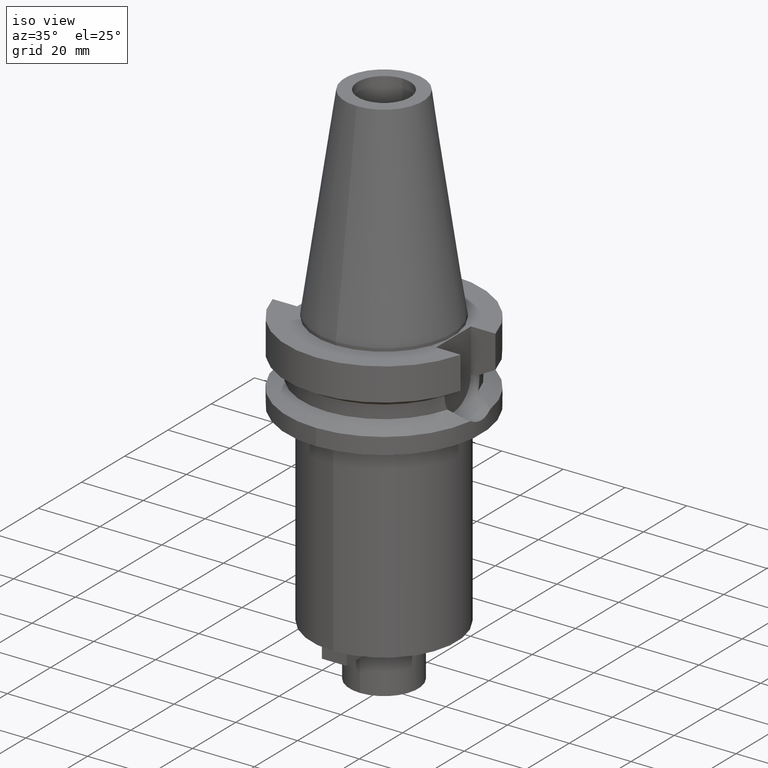
[diagram: clean part render]
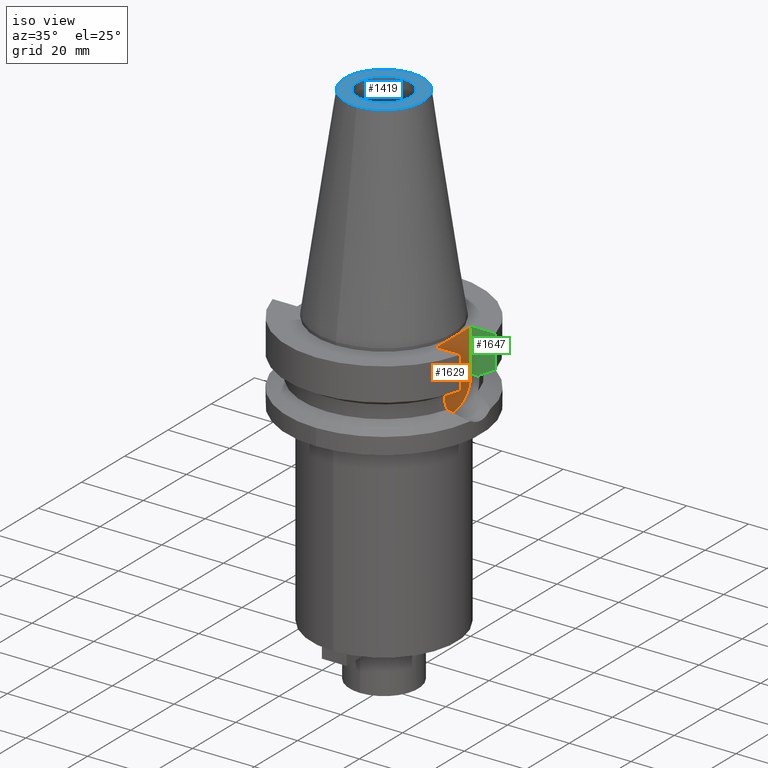
[diagram: same view with three faces highlighted in distinct colors, each labeled with its STEP entity id]
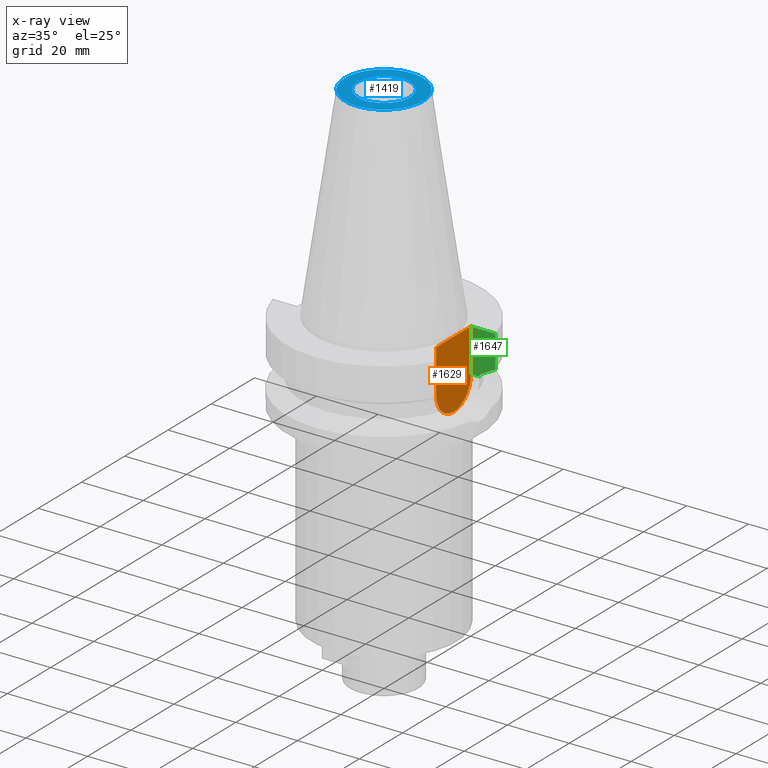
[diagram: x-ray of the same camera — body ghosted, the three highlighted faces saturated]
A machine part, iso view with three faces highlighted in distinct colors.
The next image is the same camera in x-ray (body ghosted, the three faces saturated) — at least one of them is partly hidden behind the body in this view.
Their STEP definitions:

[orange] entity #1629 — the highlighted planar face has unit normal (1, 0, 0).
#124=DIRECTION('',(0.E0,-1.E0,0.E0));
#125=VECTOR('',#124,1.61E1);
#126=CARTESIAN_POINT('',(2.25E1,8.05E0,-1.E0));
#127=LINE('',#126,#125);
#307=DIRECTION('',(0.E0,0.E0,-1.E0));
#308=VECTOR('',#307,1.395E1);
#309=CARTESIAN_POINT('',(2.25E1,8.05E0,-1.E0));
#310=LINE('',#309,#308);
#314=CARTESIAN_POINT('',(2.25E1,0.E0,-1.495E1));
#315=DIRECTION('',(-1.E0,0.E0,0.E0));
#316=DIRECTION('',(0.E0,1.E0,0.E0));
#317=AXIS2_PLACEMENT_3D('',#314,#315,#316);
#322=CARTESIAN_POINT('',(2.25E1,0.E0,-1.495E1));
#323=DIRECTION('',(-1.E0,0.E0,0.E0));
#324=DIRECTION('',(0.E0,0.E0,-1.E0));
#325=AXIS2_PLACEMENT_3D('',#322,#323,#324);
#330=DIRECTION('',(0.E0,0.E0,1.E0));
#331=VECTOR('',#330,1.395E1);
#332=CARTESIAN_POINT('',(2.25E1,-8.05E0,-1.495E1));
#333=LINE('',#332,#331);
#1310=CARTESIAN_POINT('',(2.25E1,-8.05E0,-1.495E1));
#1311=VERTEX_POINT('',#1310);
#1312=CARTESIAN_POINT('',(2.25E1,0.E0,-2.3E1));
#1313=VERTEX_POINT('',#1312);
#1314=CARTESIAN_POINT('',(2.25E1,8.05E0,-1.495E1));
#1315=VERTEX_POINT('',#1314);
#1362=CARTESIAN_POINT('',(2.25E1,8.05E0,-1.E0));
#1363=VERTEX_POINT('',#1362);
#1364=CARTESIAN_POINT('',(2.25E1,-8.05E0,-1.E0));
#1365=VERTEX_POINT('',#1364);
#1614=CARTESIAN_POINT('',(2.25E1,0.E0,0.E0));
#1615=DIRECTION('',(1.E0,0.E0,0.E0));
#1616=DIRECTION('',(0.E0,0.E0,-1.E0));
#1617=AXIS2_PLACEMENT_3D('',#1614,#1615,#1616);
#1618=PLANE('',#1617);
#1619=ORIENTED_EDGE('',*,*,#1491,.F.);
#1621=ORIENTED_EDGE('',*,*,#1620,.T.);
#1623=ORIENTED_EDGE('',*,*,#1622,.T.);
#1625=ORIENTED_EDGE('',*,*,#1624,.T.);
#1626=ORIENTED_EDGE('',*,*,#1607,.T.);
#1627=EDGE_LOOP('',(#1619,#1621,#1623,#1625,#1626));
#1628=FACE_OUTER_BOUND('',#1627,.F.);
#318=CIRCLE('',#317,8.05E0);
#326=CIRCLE('',#325,8.05E0);
#1491=EDGE_CURVE('',#1363,#1365,#127,.T.);
#1607=EDGE_CURVE('',#1311,#1365,#333,.T.);
#1620=EDGE_CURVE('',#1363,#1315,#310,.T.);
#1622=EDGE_CURVE('',#1315,#1313,#318,.T.);
#1624=EDGE_CURVE('',#1313,#1311,#326,.T.);
#1629=ADVANCED_FACE('',(#1628),#1618,.T.);

[blue] entity #1419 — the highlighted planar face has unit normal (0, 0, -1).
#17=CARTESIAN_POINT('',(0.E0,1.625106302469E-14,6.54E1));
#18=DIRECTION('',(0.E0,0.E0,-1.E0));
#19=DIRECTION('',(0.E0,-1.E0,0.E0));
#20=AXIS2_PLACEMENT_3D('',#17,#18,#19);
#26=CARTESIAN_POINT('',(0.E0,1.625106302469E-14,6.54E1));
#27=DIRECTION('',(0.E0,0.E0,-1.E0));
#28=DIRECTION('',(0.E0,1.E0,0.E0));
#29=AXIS2_PLACEMENT_3D('',#26,#27,#28);
#34=CARTESIAN_POINT('',(0.E0,2.131130359876E-14,6.54E1));
#35=DIRECTION('',(0.E0,0.E0,1.E0));
#36=DIRECTION('',(0.E0,-1.E0,0.E0));
#37=AXIS2_PLACEMENT_3D('',#34,#35,#36);
#42=CARTESIAN_POINT('',(0.E0,2.131130359876E-14,6.54E1));
#43=DIRECTION('',(0.E0,0.E0,1.E0));
#44=DIRECTION('',(0.E0,1.E0,0.E0));
#45=AXIS2_PLACEMENT_3D('',#42,#43,#44);
#1209=CARTESIAN_POINT('',(0.E0,-1.268766899430E1,6.54E1));
#1210=CARTESIAN_POINT('',(0.E0,1.268766899430E1,6.54E1));
#1211=VERTEX_POINT('',#1209);
#1212=VERTEX_POINT('',#1210);
#1213=CARTESIAN_POINT('',(0.E0,-8.5E0,6.54E1));
#1214=CARTESIAN_POINT('',(0.E0,8.5E0,6.54E1));
#1215=VERTEX_POINT('',#1213);
#1216=VERTEX_POINT('',#1214);
#1402=CARTESIAN_POINT('',(0.E0,2.025565805790E-14,6.54E1));
#1403=DIRECTION('',(0.E0,0.E0,-1.E0));
#1404=DIRECTION('',(0.E0,-1.E0,0.E0));
#1405=AXIS2_PLACEMENT_3D('',#1402,#1403,#1404);
#1406=PLANE('',#1405);
#1408=ORIENTED_EDGE('',*,*,#1407,.T.);
#1410=ORIENTED_EDGE('',*,*,#1409,.T.);
#1411=EDGE_LOOP('',(#1408,#1410));
#1412=FACE_OUTER_BOUND('',#1411,.F.);
#1414=ORIENTED_EDGE('',*,*,#1413,.T.);
#1416=ORIENTED_EDGE('',*,*,#1415,.T.);
#1417=EDGE_LOOP('',(#1414,#1416));
#1418=FACE_BOUND('',#1417,.F.);
#21=CIRCLE('',#20,1.268766899430E1);
#30=CIRCLE('',#29,1.268766899430E1);
#38=CIRCLE('',#37,8.5E0);
#46=CIRCLE('',#45,8.5E0);
#1407=EDGE_CURVE('',#1211,#1212,#21,.T.);
#1409=EDGE_CURVE('',#1212,#1211,#30,.T.);
#1413=EDGE_CURVE('',#1215,#1216,#38,.T.);
#1415=EDGE_CURVE('',#1216,#1215,#46,.T.);
#1419=ADVANCED_FACE('',(#1412,#1418),#1406,.F.);

[green] entity #1647 — the highlighted planar face has unit normal (0, 1, 0).
#307=DIRECTION('',(0.E0,0.E0,-1.E0));
#308=VECTOR('',#307,1.395E1);
#309=CARTESIAN_POINT('',(2.25E1,8.05E0,-1.E0));
#310=LINE('',#309,#308);
#337=DIRECTION('',(1.E0,-3.506251283226E-14,0.E0));
#338=VECTOR('',#337,7.954022722788E0);
#339=CARTESIAN_POINT('',(2.25E1,8.05E0,-1.E0));
#340=LINE('',#339,#338);
#344=CARTESIAN_POINT('',(3.045402291376E1,8.049999277539E0,-1.156551215973E1));
#345=CARTESIAN_POINT('',(2.987645774495E1,8.049999277539E0,-1.188789690896E1));
#346=CARTESIAN_POINT('',(2.872091197121E1,8.049999725861E0,-1.253193846352E1));
#347=CARTESIAN_POINT('',(2.698538660664E1,8.050002043179E0,-1.349404333916E1));
#348=CARTESIAN_POINT('',(2.582730530606E1,8.049995415342E0,-1.413348341094E1));
#349=CARTESIAN_POINT('',(2.524772413135E1,8.049995415342E0,-1.445229203138E1));
#381=DIRECTION('',(2.937012261228E-6,-9.211542571136E-6,9.999999999533E-1));
#382=VECTOR('',#381,4.977079686406E-1);
#383=CARTESIAN_POINT('',(2.524772266958E1,8.05E0,-1.495E1));
#384=LINE('',#383,#382);
#437=DIRECTION('',(-1.807480303809E-8,6.837917851781E-8,1.E0));
#438=VECTOR('',#437,1.056551215973E1);
#439=CARTESIAN_POINT('',(3.045402291376E1,8.049999277539E0,-1.156551215973E1));
#440=LINE('',#439,#438);
#520=DIRECTION('',(1.E0,-1.551559937893E-14,0.E0));
#521=VECTOR('',#520,2.747722669580E0);
#522=CARTESIAN_POINT('',(2.25E1,8.05E0,-1.495E1));
#523=LINE('',#522,#521);
#1314=CARTESIAN_POINT('',(2.25E1,8.05E0,-1.495E1));
#1315=VERTEX_POINT('',#1314);
#1316=CARTESIAN_POINT('',(2.524772266958E1,8.05E0,-1.495E1));
#1317=VERTEX_POINT('',#1316);
#1344=CARTESIAN_POINT('',(2.524772413135E1,8.049995415342E0,-1.445229203138E1));
#1345=VERTEX_POINT('',#1344);
#1359=CARTESIAN_POINT('',(3.045402272279E1,8.05E0,-1.E0));
#1361=VERTEX_POINT('',#1359);
#1362=CARTESIAN_POINT('',(2.25E1,8.05E0,-1.E0));
#1363=VERTEX_POINT('',#1362);
#1383=VERTEX_POINT('',#344);
#1630=CARTESIAN_POINT('',(2.25E1,8.05E0,-1.495E1));
#1631=DIRECTION('',(0.E0,1.E0,0.E0));
#1632=DIRECTION('',(0.E0,0.E0,1.E0));
#1633=AXIS2_PLACEMENT_3D('',#1630,#1631,#1632);
#1634=PLANE('',#1633);
#1636=ORIENTED_EDGE('',*,*,#1635,.F.);
#1638=ORIENTED_EDGE('',*,*,#1637,.F.);
#1639=ORIENTED_EDGE('',*,*,#1620,.F.);
#1640=ORIENTED_EDGE('',*,*,#1489,.T.);
#1642=ORIENTED_EDGE('',*,*,#1641,.F.);
#1644=ORIENTED_EDGE('',*,*,#1643,.T.);
#1645=EDGE_LOOP('',(#1636,#1638,#1639,#1640,#1642,#1644));
#1646=FACE_OUTER_BOUND('',#1645,.F.);
#350=B_SPLINE_CURVE_WITH_KNOTS('',3,(#344,#345,#346,#347,#348,#349),
.UNSPECIFIED.,.F.,.F.,(4,1,1,4),(0.E0,3.333333333333E-1,6.666666666667E-1,1.E0),
.UNSPECIFIED.);
#1489=EDGE_CURVE('',#1363,#1361,#340,.T.);
#1620=EDGE_CURVE('',#1363,#1315,#310,.T.);
#1635=EDGE_CURVE('',#1317,#1345,#384,.T.);
#1637=EDGE_CURVE('',#1315,#1317,#523,.T.);
#1641=EDGE_CURVE('',#1383,#1361,#440,.T.);
#1643=EDGE_CURVE('',#1383,#1345,#350,.T.);
#1647=ADVANCED_FACE('',(#1646),#1634,.F.);